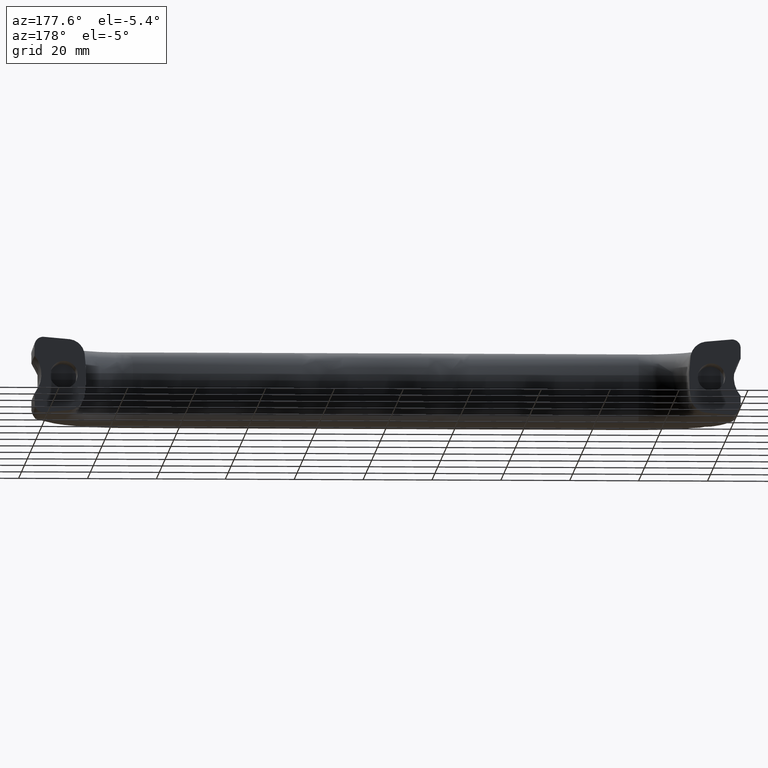
[diagram: clean part render]
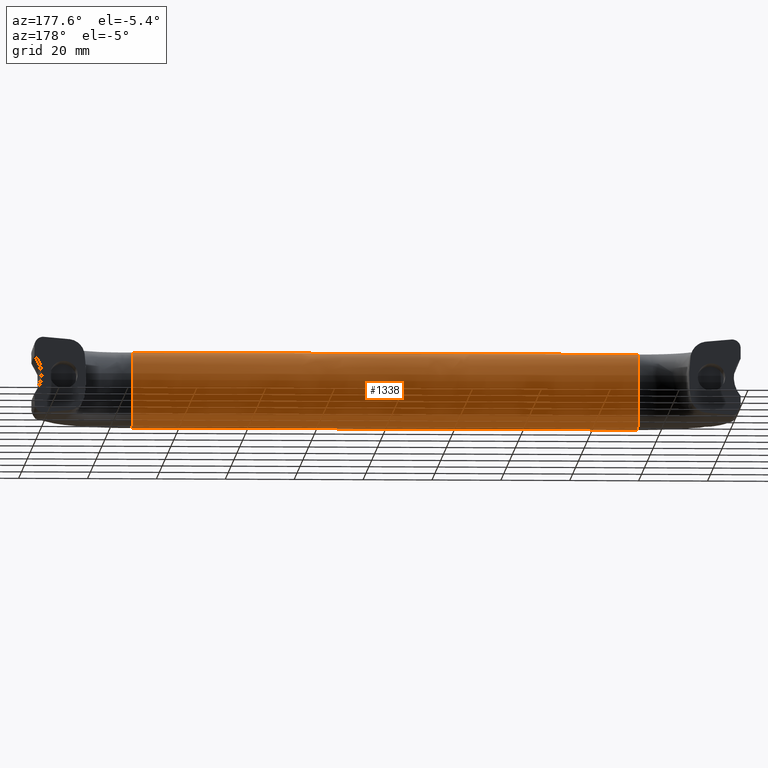
[diagram: same view with one face highlighted and labeled with its STEP entity id]
A machine part, auxiliary view. The second image highlights one B-rep face of the part: STEP entity #1338.
In plain terms, the highlighted face is a freeform B-spline surface patch.
Its self-contained STEP definition (entity closure, byte-faithful):
#749=CARTESIAN_POINT('',(-74.455555555555705,2.500000000103310,-10.999999999960339));
#750=VERTEX_POINT('',#749);
#846=CARTESIAN_POINT('',(72.299835684796108,2.508429898845060,-11.0));
#847=VERTEX_POINT('',#846);
#865=CARTESIAN_POINT('',(72.299835684796108,2.508429898845060,-11.0));
#866=CARTESIAN_POINT('',(23.314650499610849,2.508429898845060,-11.0));
#867=CARTESIAN_POINT('',(-25.470370370370549,2.500000000103310,-10.999999999960339));
#868=CARTESIAN_POINT('',(-74.455555555555705,2.500000000103310,-10.999999999960339));
#869=B_SPLINE_CURVE_WITH_KNOTS('',3,(#865,#866,#867,#868),.UNSPECIFIED.,.F.,.U.,(4,4),(3.0,4.0),.UNSPECIFIED.);
#870=EDGE_CURVE('',#847,#750,#869,.T.);
#1171=CARTESIAN_POINT('',(-74.455555555555705,2.934070290343550,10.962028225664501));
#1172=VERTEX_POINT('',#1171);
#1173=CARTESIAN_POINT('',(-74.455555555555705,2.934070290343550,10.962028225664501));
#1174=CARTESIAN_POINT('',(-74.455555555555705,4.620966827431230,10.814461216322179));
#1175=CARTESIAN_POINT('',(-74.455555555555705,6.307863364442980,10.666894206739400));
#1176=CARTESIAN_POINT('',(-74.455555555555705,8.849473894949181,10.444558184539339));
#1177=CARTESIAN_POINT('',(-74.455555555555705,9.644185332063021,10.155834250544681));
#1178=CARTESIAN_POINT('',(-74.455555555555705,11.457888812417000,8.951692171214292));
#1179=CARTESIAN_POINT('',(-74.455555555555705,12.269098171270119,7.745626121879460));
#1180=CARTESIAN_POINT('',(-74.455555555555705,13.019905662346821,3.060623642448590));
#1181=CARTESIAN_POINT('',(-74.455555555555705,13.135354049524500,-0.257073064951788));
#1182=CARTESIAN_POINT('',(-74.455555555555705,12.759569532413240,-4.477565060371450));
#1183=CARTESIAN_POINT('',(-74.455555555555705,12.644125695351800,-5.405459809109940));
#1184=CARTESIAN_POINT('',(-74.455555555555705,12.224394466560600,-8.024598332419410));
#1185=CARTESIAN_POINT('',(-74.455555555555705,11.115502204402761,-9.418795754261740));
#1186=CARTESIAN_POINT('',(-74.455555555555705,9.114156833540809,-10.322745869227060));
#1187=CARTESIAN_POINT('',(-74.455555555555705,8.567988486795391,-10.469101419348799));
#1188=CARTESIAN_POINT('',(-74.455555555555705,6.163224985270290,-10.679498247303540));
#1189=CARTESIAN_POINT('',(-74.455555555555705,4.331612492686800,-10.839749123631920));
#1190=CARTESIAN_POINT('',(-74.455555555555705,2.500000000103310,-10.999999999960339));
#1191=B_SPLINE_CURVE_WITH_KNOTS('',3,(#1173,#1174,#1175,#1176,#1177,#1178,#1179,#1180,#1181,#1182,#1183,#1184,#1185,#1186,#1187,#1188,#1189,#1190),.UNSPECIFIED.,.F.,.U.,(4,2,2,2,2,2,2,2,4),(0.252235712501356,0.327227706813675,0.365224528523516,0.428738108484496,0.575354194704624,0.616796911402185,0.692826600959993,0.718306401209342,0.799731923832814),.UNSPECIFIED.);
#1192=EDGE_CURVE('',#1172,#750,#1191,.T.);
#1231=CARTESIAN_POINT('',(72.303397279750200,2.942482686218115,10.962028225916219));
#1232=CARTESIAN_POINT('',(72.317238453318694,4.629311212552089,10.814461216595340));
#1233=CARTESIAN_POINT('',(72.331079626887103,6.316139738886080,10.666894207274479));
#1234=CARTESIAN_POINT('',(72.351933823767695,8.857647799454821,10.444558185676520));
#1235=CARTESIAN_POINT('',(72.358454519434702,9.652327196278991,10.155834251835561));
#1236=CARTESIAN_POINT('',(72.373336158070003,11.465957553882140,8.951692172804361));
#1237=CARTESIAN_POINT('',(72.379992221019009,12.277134207357520,7.745626123481340));
#1238=CARTESIAN_POINT('',(72.386152679929296,13.027911428217660,3.060623643819755));
#1239=CARTESIAN_POINT('',(72.387099946777809,13.143355160943880,-0.257073063755251));
#1240=CARTESIAN_POINT('',(72.384016593050987,12.767585794465560,-4.477565059403100));
#1241=CARTESIAN_POINT('',(72.383069363538112,12.652146611847220,-5.405459808217180));
#1242=CARTESIAN_POINT('',(72.379625422159990,12.232432305759520,-8.024598331859901));
#1243=CARTESIAN_POINT('',(72.370526837907803,11.123584751046600,-9.418795753945981));
#1244=CARTESIAN_POINT('',(72.354105576711305,9.122320068705710,-10.322745869198620));
#1245=CARTESIAN_POINT('',(72.349624204725217,8.576173741888821,-10.469101419360820));
#1246=CARTESIAN_POINT('',(72.329892852929902,6.171507193434350,-10.679498247326540));
#1247=CARTESIAN_POINT('',(72.314864268862991,4.339968546139710,-10.839749123663260));
#1248=CARTESIAN_POINT('',(72.299835684796108,2.508429898845060,-11.0));
#1249=CARTESIAN_POINT('',(23.318212094564998,2.942482686218115,10.962028225916219));
#1250=CARTESIAN_POINT('',(23.332053268133450,4.629311212552089,10.814461216595340));
#1251=CARTESIAN_POINT('',(23.345894441701901,6.316139738886080,10.666894207274479));
#1252=CARTESIAN_POINT('',(23.366748638582500,8.857647799454821,10.444558185676520));
#1253=CARTESIAN_POINT('',(23.373269334249549,9.652327196278991,10.155834251835561));
#1254=CARTESIAN_POINT('',(23.388150972884851,11.465957553882140,8.951692172804361));
#1255=CARTESIAN_POINT('',(23.394807035833800,12.277134207357520,7.745626123481340));
#1256=CARTESIAN_POINT('',(23.400967494744101,13.027911428217640,3.060623643819755));
#1257=CARTESIAN_POINT('',(23.401914761592550,13.143355160943900,-0.257073063755251));
#1258=CARTESIAN_POINT('',(23.398831407865750,12.767585794465560,-4.477565059403100));
#1259=CARTESIAN_POINT('',(23.397884178352950,12.652146611847220,-5.405459808217180));
#1260=CARTESIAN_POINT('',(23.394440236974749,12.232432305759540,-8.024598331859901));
#1261=CARTESIAN_POINT('',(23.385341652722651,11.123584751046600,-9.418795753945981));
#1262=CARTESIAN_POINT('',(23.368920391526100,9.122320068705710,-10.322745869198620));
#1263=CARTESIAN_POINT('',(23.364439019540001,8.576173741888821,-10.469101419360801));
#1264=CARTESIAN_POINT('',(23.344707667744750,6.171507193434359,-10.679498247326540));
#1265=CARTESIAN_POINT('',(23.329679083677799,4.339968546139710,-10.839749123663260));
#1266=CARTESIAN_POINT('',(23.314650499610849,2.508429898845060,-11.0));
#1267=CARTESIAN_POINT('',(-25.470370370370500,2.934070290343550,10.962028225664501));
#1268=CARTESIAN_POINT('',(-25.470370370370549,4.620966827431230,10.814461216322179));
#1269=CARTESIAN_POINT('',(-25.470370370370549,6.307863364442980,10.666894206739400));
#1270=CARTESIAN_POINT('',(-25.470370370370500,8.849473894949181,10.444558184539339));
#1271=CARTESIAN_POINT('',(-25.470370370370549,9.644185332063021,10.155834250544681));
#1272=CARTESIAN_POINT('',(-25.470370370370549,11.457888812417000,8.951692171214292));
#1273=CARTESIAN_POINT('',(-25.470370370370549,12.269098171270119,7.745626121879460));
#1274=CARTESIAN_POINT('',(-25.470370370370549,13.019905662346821,3.060623642448590));
#1275=CARTESIAN_POINT('',(-25.470370370370549,13.135354049524500,-0.257073064951788));
#1276=CARTESIAN_POINT('',(-25.470370370370549,12.759569532413240,-4.477565060371450));
#1277=CARTESIAN_POINT('',(-25.470370370370549,12.644125695351800,-5.405459809109940));
#1278=CARTESIAN_POINT('',(-25.470370370370549,12.224394466560600,-8.024598332419410));
#1279=CARTESIAN_POINT('',(-25.470370370370549,11.115502204402761,-9.418795754261740));
#1280=CARTESIAN_POINT('',(-25.470370370370500,9.114156833540809,-10.322745869227060));
#1281=CARTESIAN_POINT('',(-25.470370370370500,8.567988486795391,-10.469101419348799));
#1282=CARTESIAN_POINT('',(-25.470370370370549,6.163224985270290,-10.679498247303540));
#1283=CARTESIAN_POINT('',(-25.470370370370549,4.331612492686800,-10.839749123631920));
#1284=CARTESIAN_POINT('',(-25.470370370370549,2.500000000103310,-10.999999999960339));
#1285=CARTESIAN_POINT('',(-74.455555555555705,2.934070290343550,10.962028225664501));
#1286=CARTESIAN_POINT('',(-74.455555555555705,4.620966827431230,10.814461216322179));
#1287=CARTESIAN_POINT('',(-74.455555555555705,6.307863364442980,10.666894206739400));
#1288=CARTESIAN_POINT('',(-74.455555555555705,8.849473894949181,10.444558184539339));
#1289=CARTESIAN_POINT('',(-74.455555555555705,9.644185332063021,10.155834250544681));
#1290=CARTESIAN_POINT('',(-74.455555555555705,11.457888812417000,8.951692171214292));
#1291=CARTESIAN_POINT('',(-74.455555555555705,12.269098171270119,7.745626121879460));
#1292=CARTESIAN_POINT('',(-74.455555555555705,13.019905662346821,3.060623642448590));
#1293=CARTESIAN_POINT('',(-74.455555555555705,13.135354049524500,-0.257073064951788));
#1294=CARTESIAN_POINT('',(-74.455555555555705,12.759569532413240,-4.477565060371450));
#1295=CARTESIAN_POINT('',(-74.455555555555705,12.644125695351800,-5.405459809109940));
#1296=CARTESIAN_POINT('',(-74.455555555555705,12.224394466560600,-8.024598332419410));
#1297=CARTESIAN_POINT('',(-74.455555555555705,11.115502204402761,-9.418795754261740));
#1298=CARTESIAN_POINT('',(-74.455555555555705,9.114156833540809,-10.322745869227060));
#1299=CARTESIAN_POINT('',(-74.455555555555705,8.567988486795391,-10.469101419348799));
#1300=CARTESIAN_POINT('',(-74.455555555555705,6.163224985270290,-10.679498247303540));
#1301=CARTESIAN_POINT('',(-74.455555555555705,4.331612492686800,-10.839749123631920));
#1302=CARTESIAN_POINT('',(-74.455555555555705,2.500000000103310,-10.999999999960339));
#1303=B_SPLINE_SURFACE_WITH_KNOTS('',3,3,((#1231,#1249,#1267,#1285),(#1232,#1250,#1268,#1286),(#1233,#1251,#1269,#1287),(#1234,#1252,#1270,#1288),(#1235,#1253,#1271,#1289),(#1236,#1254,#1272,#1290),(#1237,#1255,#1273,#1291),(#1238,#1256,#1274,#1292),(#1239,#1257,#1275,#1293),(#1240,#1258,#1276,#1294),(#1241,#1259,#1277,#1295),(#1242,#1260,#1278,#1296),(#1243,#1261,#1279,#1297),(#1244,#1262,#1280,#1298),(#1245,#1263,#1281,#1299),(#1246,#1264,#1282,#1300),(#1247,#1265,#1283,#1301),(#1248,#1266,#1284,#1302)),.UNSPECIFIED.,.F.,.F.,.U.,(4,2,2,2,2,2,2,2,4),(4,4),(0.0,5.080016096622960,7.653950390230605,11.956409759589230,21.888297621114749,24.695659524768129,29.845969905451849,31.571991417379660,37.087819732072518),(0.0,146.955555555555800),.UNSPECIFIED.);
#1304=CARTESIAN_POINT('',(72.303397279750200,2.942482686218115,10.962028225916219));
#1305=VERTEX_POINT('',#1304);
#1306=CARTESIAN_POINT('',(72.303397279750200,2.942482686218115,10.962028225916219));
#1307=CARTESIAN_POINT('',(72.317238453318694,4.629311212552089,10.814461216595340));
#1308=CARTESIAN_POINT('',(72.331079626887103,6.316139738886080,10.666894207274479));
#1309=CARTESIAN_POINT('',(72.351933823767695,8.857647799454821,10.444558185676520));
#1310=CARTESIAN_POINT('',(72.358454519434702,9.652327196278991,10.155834251835561));
#1311=CARTESIAN_POINT('',(72.373336158070003,11.465957553882140,8.951692172804361));
#1312=CARTESIAN_POINT('',(72.379992221019009,12.277134207357520,7.745626123481340));
#1313=CARTESIAN_POINT('',(72.386152679929296,13.027911428217660,3.060623643819755));
#1314=CARTESIAN_POINT('',(72.387099946777809,13.143355160943880,-0.257073063755251));
#1315=CARTESIAN_POINT('',(72.384016593050987,12.767585794465560,-4.477565059403100));
#1316=CARTESIAN_POINT('',(72.383069363538112,12.652146611847220,-5.405459808217180));
#1317=CARTESIAN_POINT('',(72.379625422159990,12.232432305759520,-8.024598331859901));
#1318=CARTESIAN_POINT('',(72.370526837907803,11.123584751046600,-9.418795753945981));
#1319=CARTESIAN_POINT('',(72.354105576711305,9.122320068705710,-10.322745869198620));
#1320=CARTESIAN_POINT('',(72.349624204725217,8.576173741888821,-10.469101419360820));
#1321=CARTESIAN_POINT('',(72.329892852929902,6.171507193434350,-10.679498247326540));
#1322=CARTESIAN_POINT('',(72.314864268862991,4.339968546139710,-10.839749123663260));
#1323=CARTESIAN_POINT('',(72.299835684796108,2.508429898845060,-11.0));
#1324=B_SPLINE_CURVE_WITH_KNOTS('',3,(#1306,#1307,#1308,#1309,#1310,#1311,#1312,#1313,#1314,#1315,#1316,#1317,#1318,#1319,#1320,#1321,#1322,#1323),.UNSPECIFIED.,.F.,.U.,(4,2,2,2,2,2,2,2,4),(0.252235712501356,0.327227706813675,0.365224528523516,0.428738108484496,0.575354194704624,0.616796911402185,0.692826600959993,0.718306401209342,0.799731923832814),.UNSPECIFIED.);
#1325=EDGE_CURVE('',#1305,#847,#1324,.T.);
#1326=ORIENTED_EDGE('',*,*,#1325,.T.);
#1327=ORIENTED_EDGE('',*,*,#870,.T.);
#1328=ORIENTED_EDGE('',*,*,#1192,.F.);
#1329=CARTESIAN_POINT('',(72.303397279750200,2.942482686218115,10.962028225916219));
#1330=CARTESIAN_POINT('',(23.318212094564998,2.942482686218115,10.962028225916219));
#1331=CARTESIAN_POINT('',(-25.470370370370500,2.934070290343550,10.962028225664501));
#1332=CARTESIAN_POINT('',(-74.455555555555705,2.934070290343550,10.962028225664501));
#1333=B_SPLINE_CURVE_WITH_KNOTS('',3,(#1329,#1330,#1331,#1332),.UNSPECIFIED.,.F.,.U.,(4,4),(3.0,4.0),.UNSPECIFIED.);
#1334=EDGE_CURVE('',#1305,#1172,#1333,.T.);
#1335=ORIENTED_EDGE('',*,*,#1334,.F.);
#1336=EDGE_LOOP('',(#1326,#1327,#1328,#1335));
#1337=FACE_OUTER_BOUND('',#1336,.T.);
#1338=ADVANCED_FACE('',(#1337),#1303,.T.);